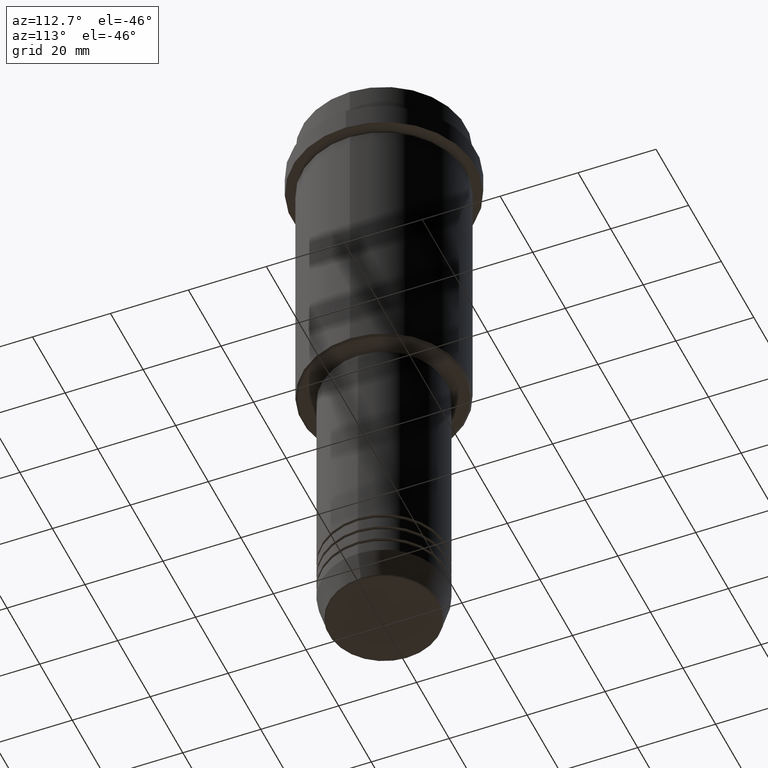
[diagram: clean part render]
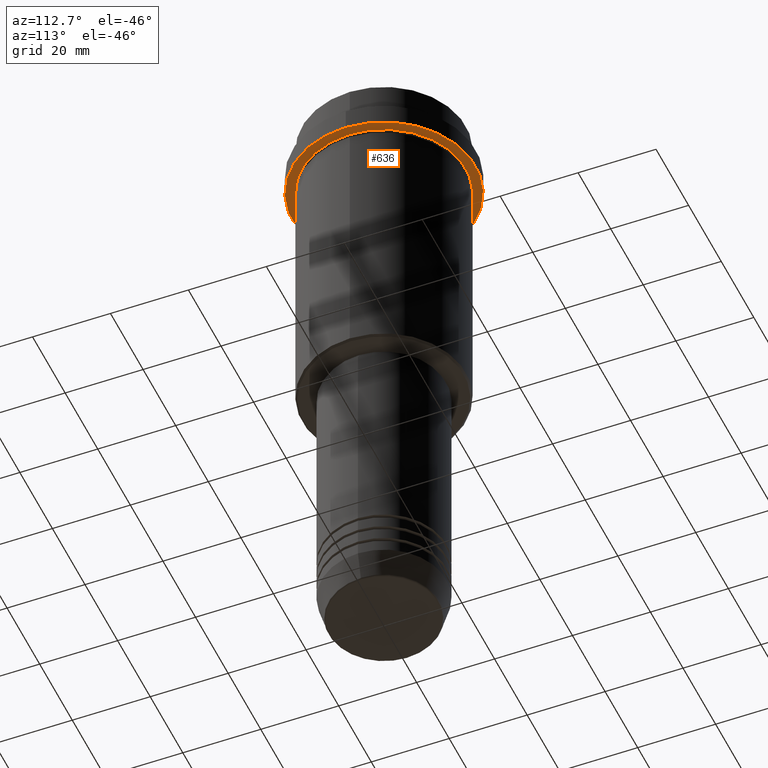
[diagram: same view with one face highlighted and labeled with its STEP entity id]
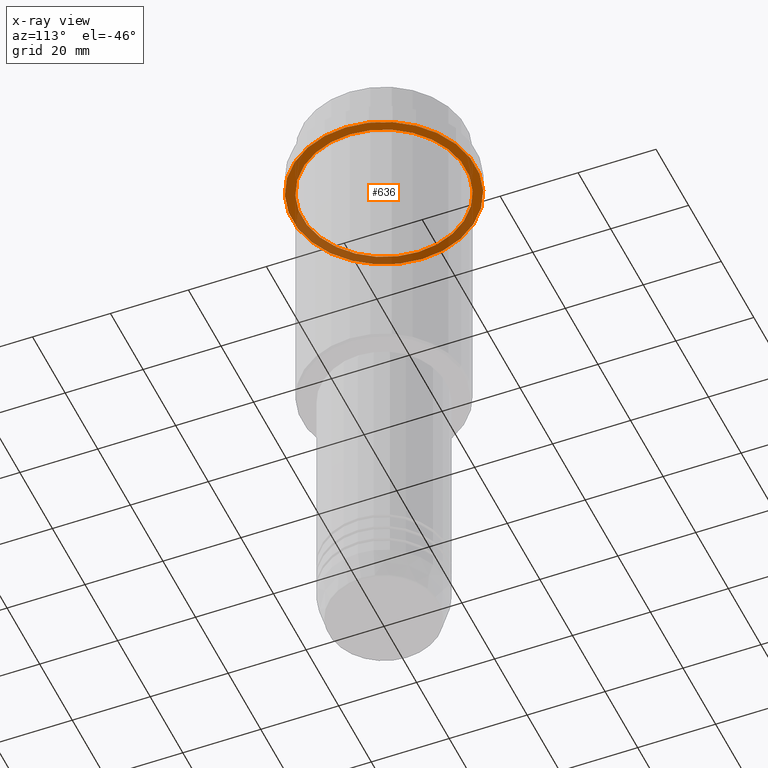
[diagram: x-ray of the same camera — body ghosted, the highlighted face saturated]
A machine part, auxiliary view. The second image highlights one B-rep face of the part: STEP entity #636.
The next image is the same camera in x-ray: the body ghosted, the highlighted face saturated — about 38% of this face is hidden behind the body in this view.
In plain terms, the highlighted planar face has unit normal (0, 0, -1).
Its self-contained STEP definition (entity closure, byte-faithful):
#50 = VERTEX_POINT ( 'NONE', #640 ) ;
#137 = DIRECTION ( 'NONE',  ( -0.000000000000000000, -0.000000000000000000, 1.000000000000000000 ) ) ;
#149 = CIRCLE ( 'NONE', #358, 20.99999999999999289 ) ;
#256 = ORIENTED_EDGE ( 'NONE', *, *, #1182, .T. ) ;
#257 = CARTESIAN_POINT ( 'NONE',  ( 0.000000000000000000, 0.000000000000000000, -15.00000000000000178 ) ) ;
#288 = AXIS2_PLACEMENT_3D ( 'NONE', #1234, #137, #924 ) ;
#294 = EDGE_LOOP ( 'NONE', ( #670, #350 ) ) ;
#296 = CARTESIAN_POINT ( 'NONE',  ( -23.50000000000000711, 2.877919977996281109E-15, -15.00000000000000000 ) ) ;
#350 = ORIENTED_EDGE ( 'NONE', *, *, #610, .F. ) ;
#358 = AXIS2_PLACEMENT_3D ( 'NONE', #257, #468, #581 ) ;
#375 = CIRCLE ( 'NONE', #579, 23.50000000000000355 ) ;
#416 = CARTESIAN_POINT ( 'NONE',  ( 0.000000000000000000, 0.000000000000000000, -15.00000000000000000 ) ) ;
#440 = CARTESIAN_POINT ( 'NONE',  ( 0.000000000000000000, 23.50000000000000355, -15.00000000000000178 ) ) ;
#468 = DIRECTION ( 'NONE',  ( -0.000000000000000000, -0.000000000000000000, 1.000000000000000000 ) ) ;
#484 = AXIS2_PLACEMENT_3D ( 'NONE', #440, #658, #1208 ) ;
#508 = CIRCLE ( 'NONE', #288, 20.99999999999999289 ) ;
#519 = ORIENTED_EDGE ( 'NONE', *, *, #1121, .T. ) ;
#524 = VERTEX_POINT ( 'NONE', #296 ) ;
#543 = DIRECTION ( 'NONE',  ( -0.000000000000000000, -0.000000000000000000, 1.000000000000000000 ) ) ;
#579 = AXIS2_PLACEMENT_3D ( 'NONE', #416, #747, #1060 ) ;
#581 = DIRECTION ( 'NONE',  ( -1.000000000000000000, 0.000000000000000000, 0.000000000000000000 ) ) ;
#610 = EDGE_CURVE ( 'NONE', #524, #50, #1133, .T. ) ;
#636 = ADVANCED_FACE ( 'NONE', ( #765, #788 ), #770, .T. ) ;
#640 = CARTESIAN_POINT ( 'NONE',  ( 23.50000000000000355, 0.000000000000000000, -15.00000000000000000 ) ) ;
#658 = DIRECTION ( 'NONE',  ( 0.000000000000000000, 0.000000000000000000, -1.000000000000000000 ) ) ;
#667 = VERTEX_POINT ( 'NONE', #778 ) ;
#670 = ORIENTED_EDGE ( 'NONE', *, *, #942, .F. ) ;
#747 = DIRECTION ( 'NONE',  ( -0.000000000000000000, -0.000000000000000000, 1.000000000000000000 ) ) ;
#754 = DIRECTION ( 'NONE',  ( 1.000000000000000000, 0.000000000000000000, 0.000000000000000000 ) ) ;
#765 = FACE_BOUND ( 'NONE', #1412, .T. ) ;
#770 = PLANE ( 'NONE',  #484 ) ;
#778 = CARTESIAN_POINT ( 'NONE',  ( 20.99999999999999289, 2.571758278209440872E-15, -15.00000000000000178 ) ) ;
#788 = FACE_OUTER_BOUND ( 'NONE', #294, .T. ) ;
#924 = DIRECTION ( 'NONE',  ( -1.000000000000000000, 0.000000000000000000, 0.000000000000000000 ) ) ;
#942 = EDGE_CURVE ( 'NONE', #50, #524, #375, .T. ) ;
#998 = CARTESIAN_POINT ( 'NONE',  ( -20.99999999999999289, 0.000000000000000000, -15.00000000000000178 ) ) ;
#1031 = VERTEX_POINT ( 'NONE', #998 ) ;
#1060 = DIRECTION ( 'NONE',  ( 1.000000000000000000, 0.000000000000000000, 0.000000000000000000 ) ) ;
#1117 = CARTESIAN_POINT ( 'NONE',  ( 0.000000000000000000, 0.000000000000000000, -15.00000000000000000 ) ) ;
#1121 = EDGE_CURVE ( 'NONE', #667, #1031, #149, .T. ) ;
#1133 = CIRCLE ( 'NONE', #1264, 23.50000000000000355 ) ;
#1182 = EDGE_CURVE ( 'NONE', #1031, #667, #508, .T. ) ;
#1208 = DIRECTION ( 'NONE',  ( -1.000000000000000000, 0.000000000000000000, -0.000000000000000000 ) ) ;
#1234 = CARTESIAN_POINT ( 'NONE',  ( 0.000000000000000000, 0.000000000000000000, -15.00000000000000178 ) ) ;
#1264 = AXIS2_PLACEMENT_3D ( 'NONE', #1117, #543, #754 ) ;
#1412 = EDGE_LOOP ( 'NONE', ( #256, #519 ) ) ;